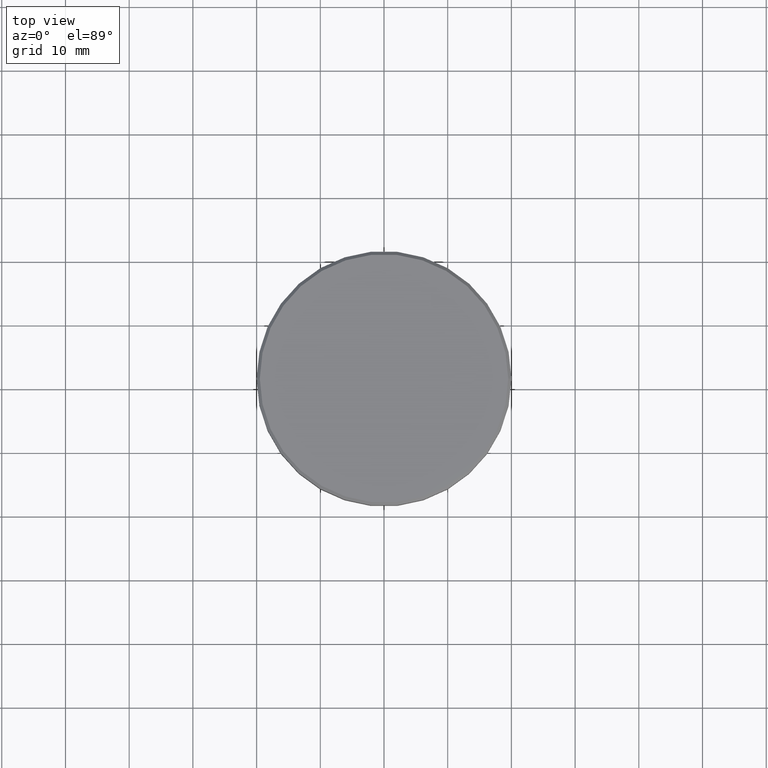
[diagram: clean part render]
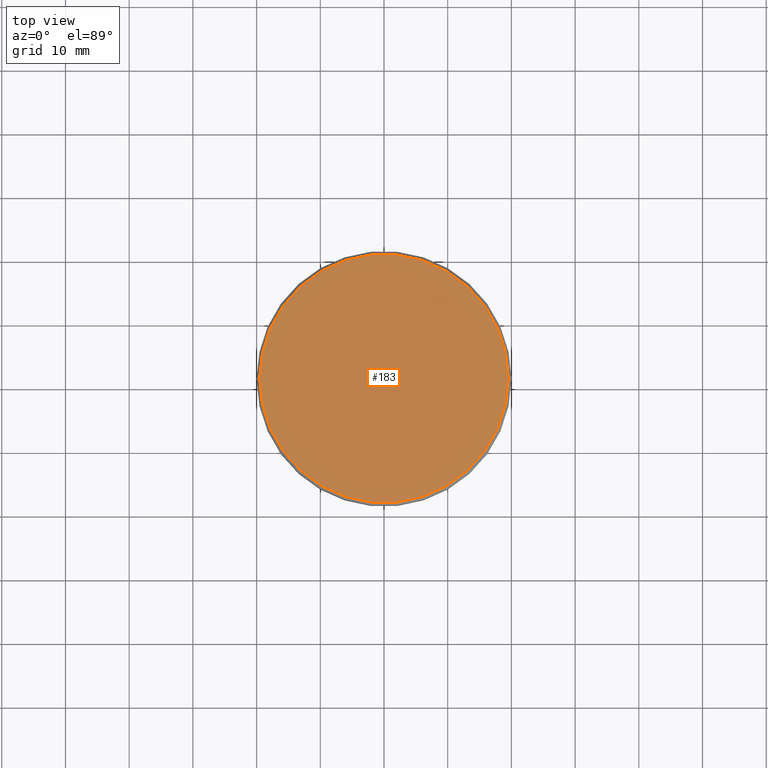
[diagram: same view with one face highlighted and labeled with its STEP entity id]
A machine part, top view. The second image highlights one B-rep face of the part: STEP entity #183.
In plain terms, the highlighted planar face has unit normal (0, -0, 1).
Its self-contained STEP definition (entity closure, byte-faithful):
#43 = CARTESIAN_POINT ( 'NONE',  ( 0.000000000000000000, 0.000000000000000000, 0.000000000000000000 ) ) ;
#56 = CARTESIAN_POINT ( 'NONE',  ( 0.000000000000000000, 0.000000000000000000, 0.000000000000000000 ) ) ;
#63 = DIRECTION ( 'NONE',  ( 0.000000000000000000, -0.000000000000000000, 1.000000000000000000 ) ) ;
#183 = ADVANCED_FACE ( 'NONE', ( #584 ), #868, .T. ) ;
#297 = AXIS2_PLACEMENT_3D ( 'NONE', #43, #1139, #675 ) ;
#302 = VERTEX_POINT ( 'NONE', #944 ) ;
#312 = DIRECTION ( 'NONE',  ( 1.000000000000000000, 0.000000000000000000, 0.000000000000000000 ) ) ;
#390 = CARTESIAN_POINT ( 'NONE',  ( 0.000000000000000000, 0.000000000000000000, 0.000000000000000000 ) ) ;
#429 = AXIS2_PLACEMENT_3D ( 'NONE', #390, #755, #312 ) ;
#520 = EDGE_LOOP ( 'NONE', ( #861, #762 ) ) ;
#584 = FACE_OUTER_BOUND ( 'NONE', #520, .T. ) ;
#675 = DIRECTION ( 'NONE',  ( 1.000000000000000000, 0.000000000000000000, 0.000000000000000000 ) ) ;
#735 = CARTESIAN_POINT ( 'NONE',  ( 19.50000000000001776, 2.418677428316023515E-15, 0.000000000000000000 ) ) ;
#755 = DIRECTION ( 'NONE',  ( -0.000000000000000000, -0.000000000000000000, 1.000000000000000000 ) ) ;
#762 = ORIENTED_EDGE ( 'NONE', *, *, #1072, .T. ) ;
#790 = AXIS2_PLACEMENT_3D ( 'NONE', #56, #63, #986 ) ;
#826 = CIRCLE ( 'NONE', #429, 19.50000000000001776 ) ;
#854 = EDGE_CURVE ( 'NONE', #302, #1020, #1060, .T. ) ;
#861 = ORIENTED_EDGE ( 'NONE', *, *, #854, .T. ) ;
#868 = PLANE ( 'NONE',  #790 ) ;
#944 = CARTESIAN_POINT ( 'NONE',  ( -19.50000000000001776, 0.000000000000000000, 0.000000000000000000 ) ) ;
#986 = DIRECTION ( 'NONE',  ( 1.000000000000000000, 0.000000000000000000, 0.000000000000000000 ) ) ;
#1020 = VERTEX_POINT ( 'NONE', #735 ) ;
#1060 = CIRCLE ( 'NONE', #297, 19.50000000000001776 ) ;
#1072 = EDGE_CURVE ( 'NONE', #1020, #302, #826, .T. ) ;
#1139 = DIRECTION ( 'NONE',  ( -0.000000000000000000, -0.000000000000000000, 1.000000000000000000 ) ) ;